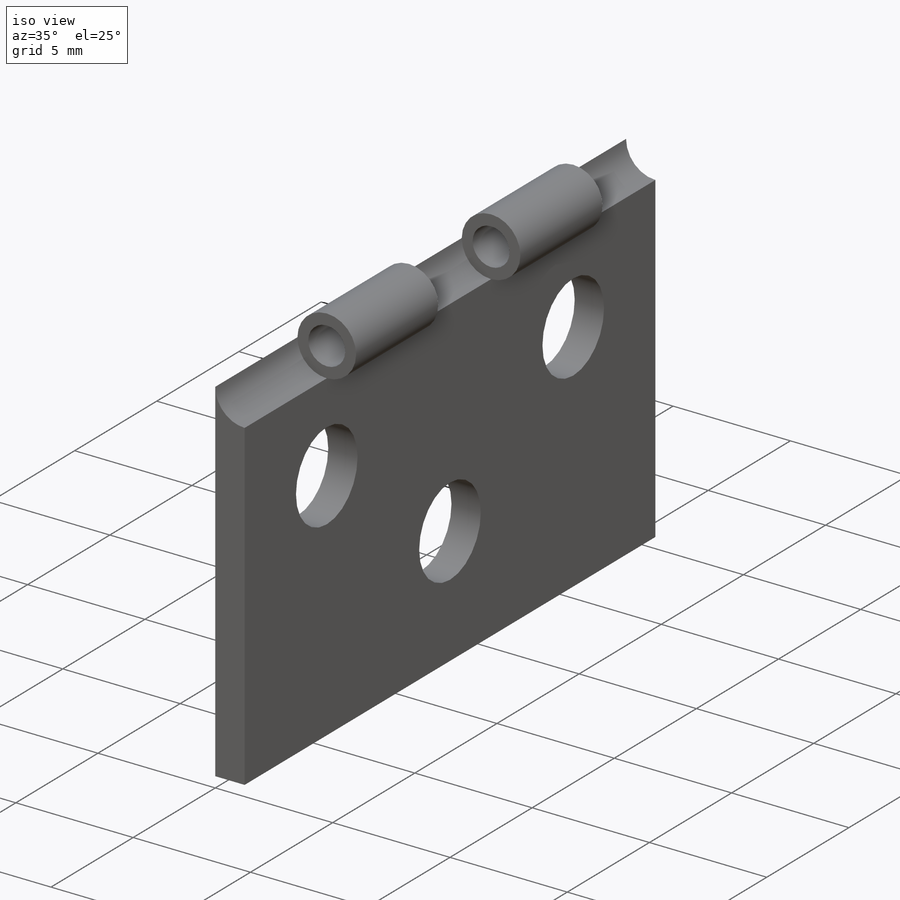
[diagram: iso view]
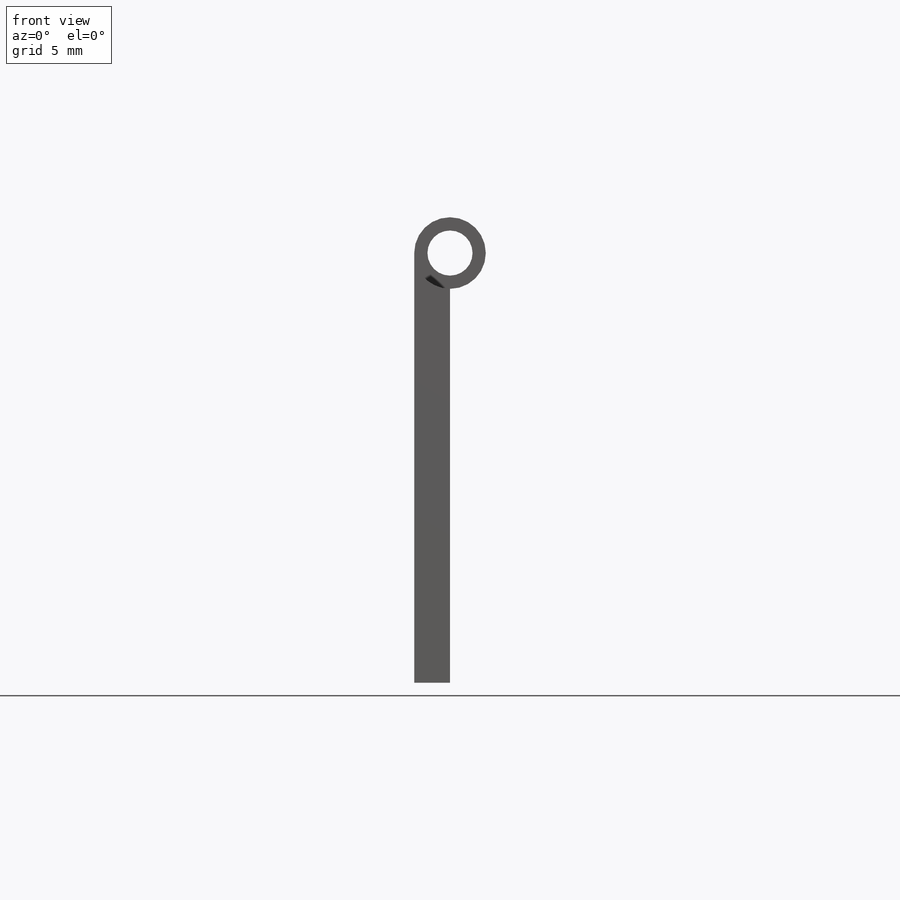
[diagram: front view]
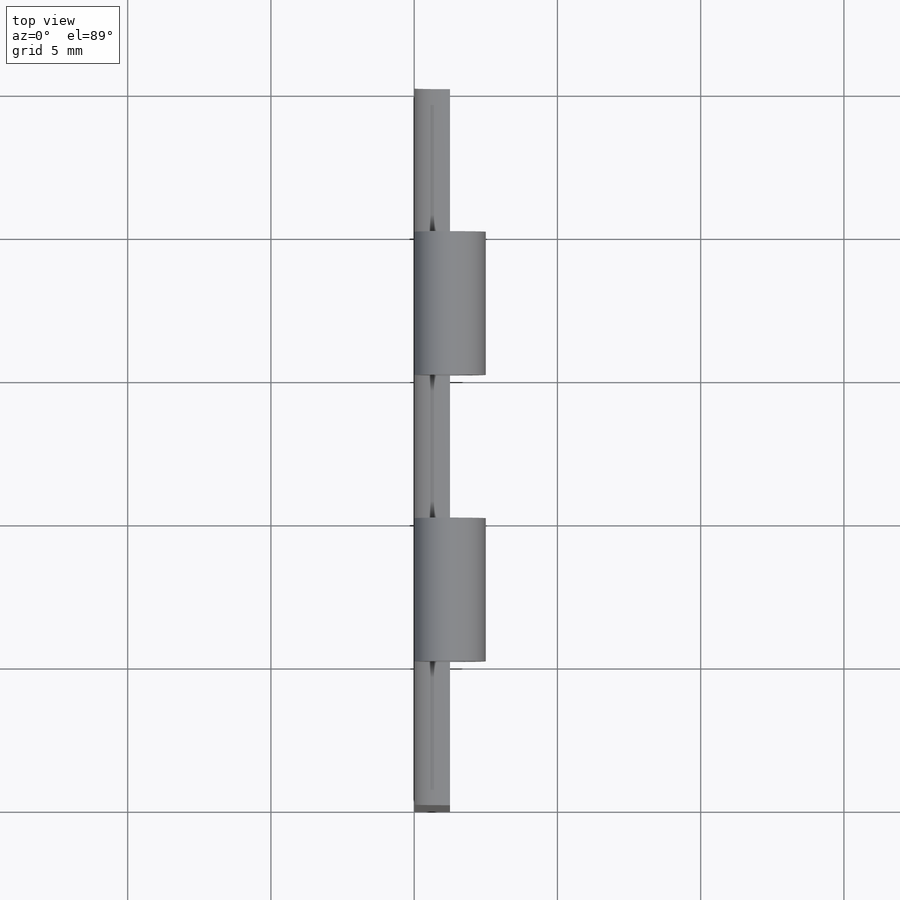
[diagram: top view]
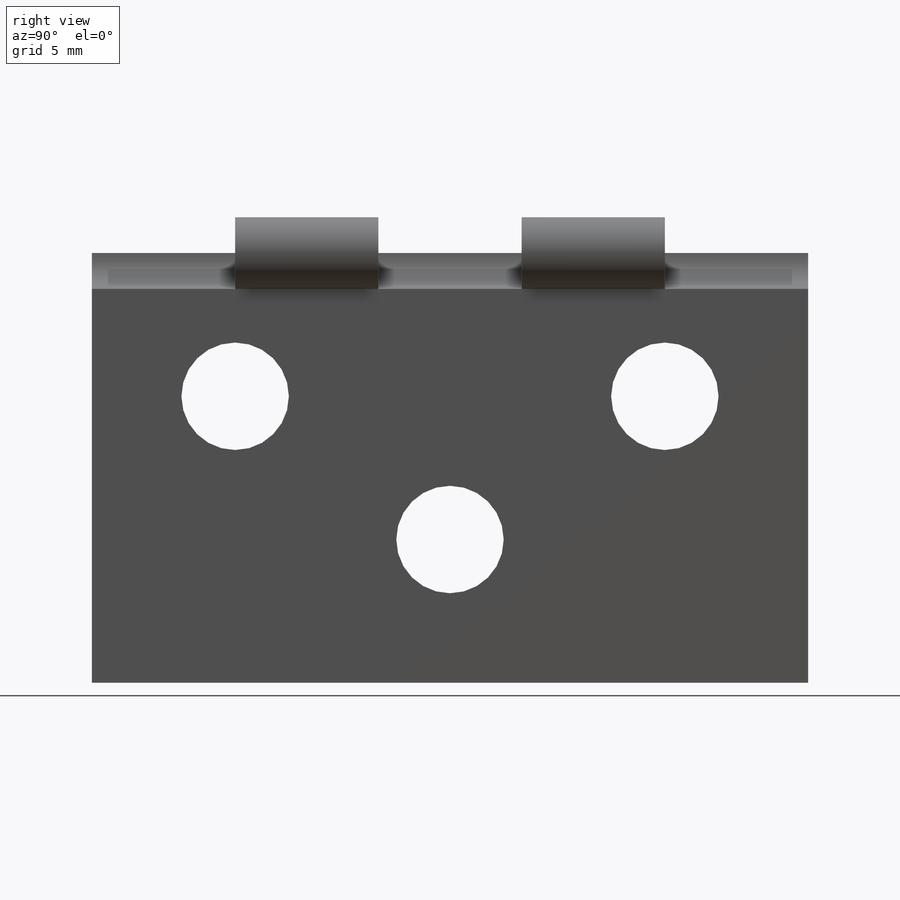
[diagram: right view]
SOLIDWORKS PART (.sldprt)
format: sldprt  version: not decoded by parser v0  size: 200,704 bytes
history: native  units: mm
features: sketch x4, extrude x2, plane x2, pattern_linear x2, cut_extrude x2, material x1 (+12 scaffold rows collapsed)
feature tree (25):
  scaffold x12  (default folders/planes/origin — collapsed)
  material  "Material <sin especificar>"
  sketch  "Sketch1"  dims[D5=7.5mm D1=50.0mm D2=30.0mm D3=10.0mm D4=10.0mm D6=10.0mm D7=10.0mm]
  extrude  "Boss-Extrude1"  Depth=2.5mm
  plane  "Plane1"
  sketch  "Sketch3"  dims[D1=3.15mm]
  extrude  "Boss-Extrude2"  Depth=10mm
  pattern_linear  "LPattern1"  Count1=2 Count2=1 Spacing1=20mm Spacing2=10mm
  plane  "Plane2"
  sketch  "Sketch5"  dims[D1=3.15mm]
  cut_extrude  "Cut-Extrude1"  Depth=50mm
  sketch  "Sketch6"
  cut_extrude  "Cut-Extrude2"  Depth=10mm
  pattern_linear  "LPattern2"  Count1=3 Count2=1 Spacing1=20mm Spacing2=10mm
decode coverage: 9 of 10 modeling features carry decoded parameters
note: suppression state not decoded; provenance and decode notes live in map.json
